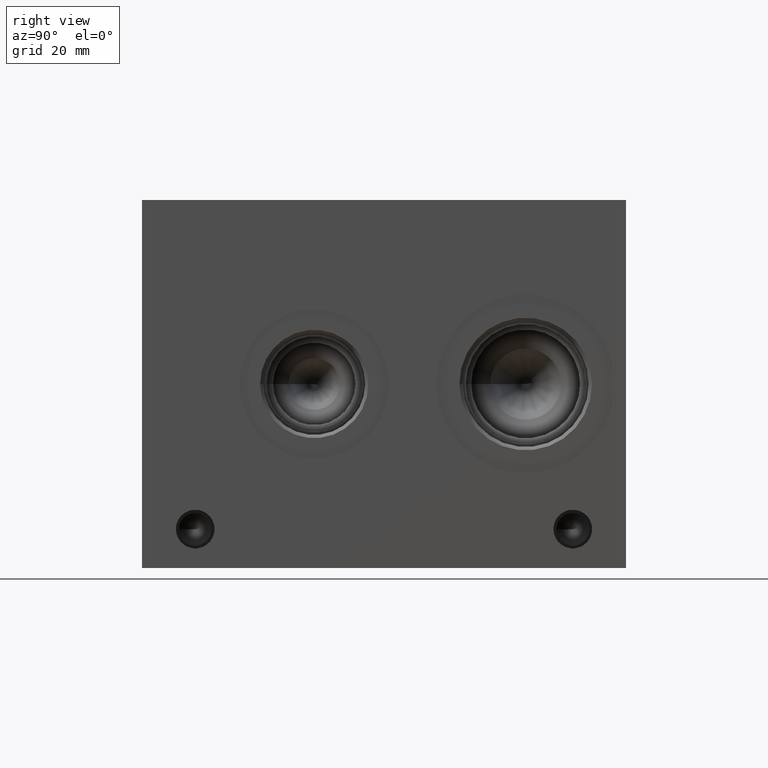
[diagram: clean part render]
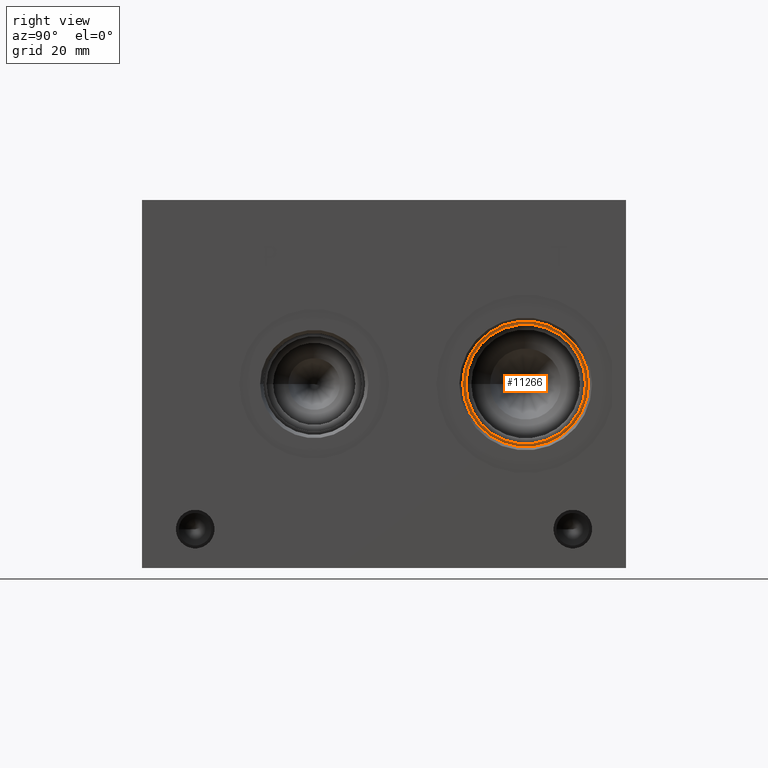
[diagram: same view with one face highlighted and labeled with its STEP entity id]
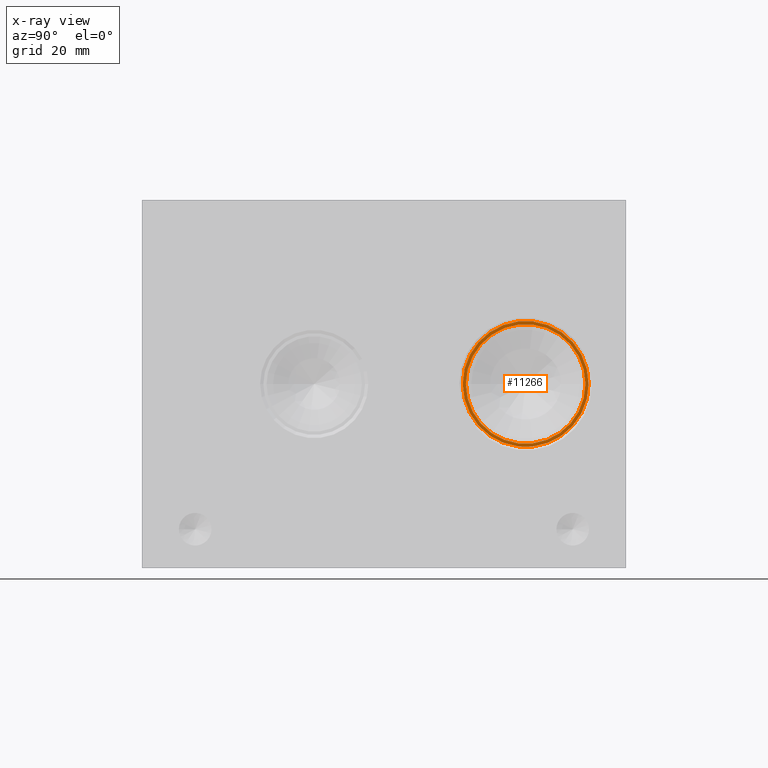
[diagram: x-ray of the same camera — body ghosted, the highlighted face saturated]
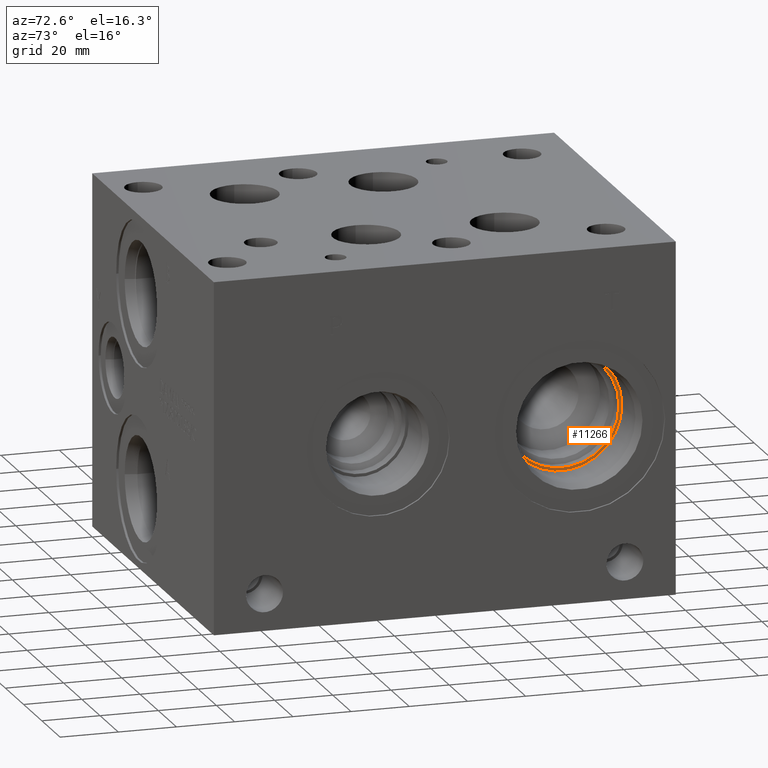
[diagram: same view with one face highlighted and labeled with its STEP entity id]
A machine part, right view. The second image highlights one B-rep face of the part: STEP entity #11266.
The next image is the same camera in x-ray: the body ghosted, the highlighted face saturated — about 0% of this face is hidden behind the body in this view.
A second angle (auxiliary view) of the same face is appended — the face is thin or edge-on in the first view.
In plain terms, the highlighted planar face has unit normal (1, 0, 0).
Its self-contained STEP definition (entity closure, byte-faithful):
#274=CIRCLE('',#11862,20.6375);
#275=CIRCLE('',#11863,20.6375);
#276=CIRCLE('',#11864,19.6088);
#463=FACE_BOUND('',#2079,.T.);
#1426=FACE_OUTER_BOUND('',#2078,.T.);
#2078=EDGE_LOOP('',(#9598,#9599));
#2079=EDGE_LOOP('',(#9600));
#5167=VERTEX_POINT('',#19186);
#5168=VERTEX_POINT('',#19187);
#5169=VERTEX_POINT('',#19190);
#6691=EDGE_CURVE('',#5167,#5168,#274,.T.);
#6692=EDGE_CURVE('',#5168,#5167,#275,.T.);
#6693=EDGE_CURVE('',#5169,#5169,#276,.T.);
#9598=ORIENTED_EDGE('',*,*,#6691,.T.);
#9599=ORIENTED_EDGE('',*,*,#6692,.T.);
#9600=ORIENTED_EDGE('',*,*,#6693,.F.);
#10321=PLANE('',#11861);
#11266=ADVANCED_FACE('',(#1426,#463),#10321,.T.);
#11861=AXIS2_PLACEMENT_3D('',#19185,#14027,#14028);
#11862=AXIS2_PLACEMENT_3D('',#19188,#14029,#14030);
#11863=AXIS2_PLACEMENT_3D('',#19189,#14031,#14032);
#11864=AXIS2_PLACEMENT_3D('',#19191,#14033,#14034);
#14027=DIRECTION('center_axis',(1.,0.,0.));
#14028=DIRECTION('ref_axis',(0.,1.,0.));
#14029=DIRECTION('center_axis',(1.,0.,0.));
#14030=DIRECTION('ref_axis',(0.,1.,0.));
#14031=DIRECTION('center_axis',(1.,0.,0.));
#14032=DIRECTION('ref_axis',(0.,1.,0.));
#14033=DIRECTION('center_axis',(1.,0.,0.));
#14034=DIRECTION('ref_axis',(0.,1.,0.));
#19185=CARTESIAN_POINT('Origin',(113.5126,125.8316,60.325));
#19186=CARTESIAN_POINT('',(113.5126,146.4691,60.325));
#19187=CARTESIAN_POINT('',(113.5126,105.1941,60.325));
#19188=CARTESIAN_POINT('Origin',(113.5126,125.8316,60.325));
#19189=CARTESIAN_POINT('Origin',(113.5126,125.8316,60.325));
#19190=CARTESIAN_POINT('',(113.5126,106.2228,60.325));
#19191=CARTESIAN_POINT('Origin',(113.5126,125.8316,60.325));